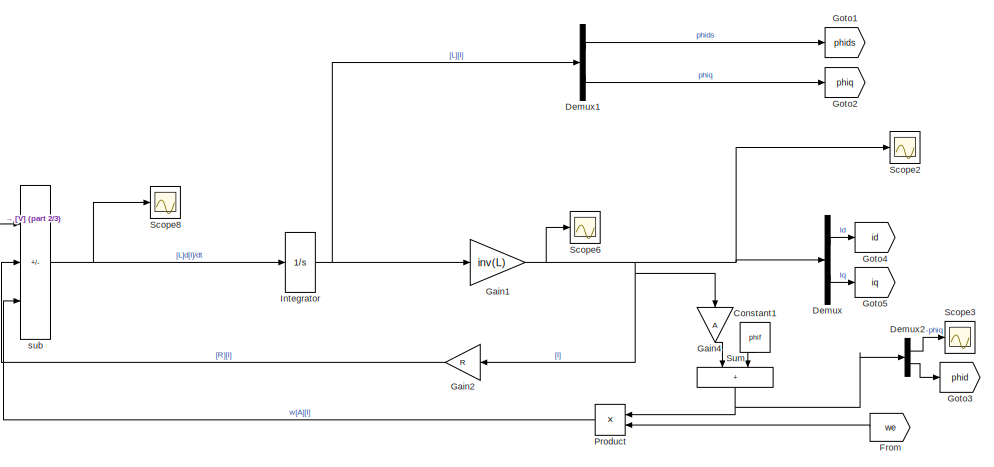
[diagram: root canvas - part 1/3, center side, full height]
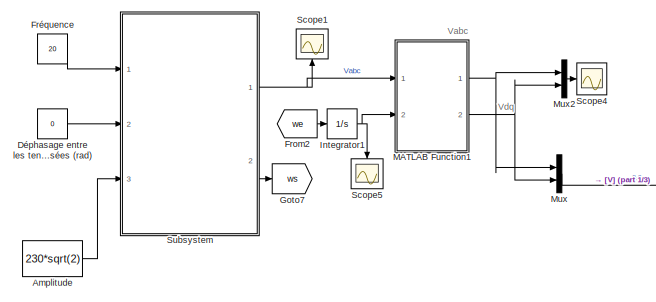
[diagram: root canvas - part 2/3, middle left region]
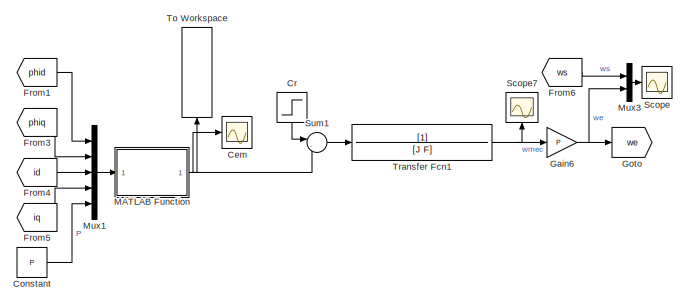
[diagram: root canvas - part 3/3, bottom right region]
MODEL slx_851d85b16422
KIND model
CONFIG AbsTol = auto
CONFIG EnableMultiTasking = off
CONFIG FixedStep = 1e-5
CONFIG MaxStep = auto
CONFIG MinStep = auto
CONFIG RelTol = 1e-3
CONFIG SampleTimeConstraint = Unconstrained
CONFIG SolverName = ode1
CONFIG StartTime = 0.0
CONFIG StopTime = 10.0
BLOCK [Constant] Amplitude
  Value = 230*sqrt(2)
BLOCK [Scope] Cem
  Floating = off
  NumInputPorts = 1
  Ports = [1]
  ScopeSpecificationString = Simulink.scopes.TimeScopeBlockCfg('CurrentConfiguration', extmgr.ConfigurationSet(extmgr.Configuration('Core','General UI',true),extmgr.Configuration('Core','Source UI',true),extmgr.Configuration('Sources','WiredSimulink',true,'DataLoggingVariableName','ScopeData1'),extmgr.Configuration('Visuals','Time Domain',true,'SerializedDisplays',{struct('MinYLimReal','-18.51073','MaxYLimReal','19.55736','YL...<+1441ch>
BLOCK [Constant] Constant
  Value = P
BLOCK [Constant] Constant1
  NameLocation = left
  Value = phif
BLOCK [Step] Cr
  After = 1+C0
  NameLocation = left
  SampleTime = 0
  Time = 4
BLOCK [Demux] Demux
  Outputs = 2
  Ports = [1, 2]
BLOCK [Demux] Demux1
  Outputs = 2
  Ports = [1, 2]
BLOCK [Demux] Demux2
  Outputs = 2
  Ports = [1, 2]
BLOCK [Constant] Déphasage entre les tensions triphasées (rad)
  Value = 0
BLOCK [From] From
  GotoTag = we
  NameLocation = top
BLOCK [From] From1
  GotoTag = phid
BLOCK [From] From2
  GotoTag = we
BLOCK [From] From3
  GotoTag = phiq
BLOCK [From] From4
  GotoTag = id
BLOCK [From] From5
  GotoTag = iq
BLOCK [From] From6
  GotoTag = ws
BLOCK [Constant] Fréquence
  NameLocation = top
  Value = 20
BLOCK [Gain] Gain1
  Gain = inv(L)
  Multiplication = Matrix(K*u)
BLOCK [Gain] Gain2
  Gain = R
  Multiplication = Matrix(K*u)
  NameLocation = top
BLOCK [Gain] Gain4
  Gain = A
  Multiplication = Matrix(K*u)
  NameLocation = left
BLOCK [Gain] Gain6
  Gain = P
BLOCK [Goto] Goto
  GotoTag = we
BLOCK [Goto] Goto1
  GotoTag = phids
BLOCK [Goto] Goto2
  GotoTag = phiq
BLOCK [Goto] Goto3
  GotoTag = phid
BLOCK [Goto] Goto4
  GotoTag = id
BLOCK [Goto] Goto5
  GotoTag = iq
BLOCK [Goto] Goto7
  GotoTag = ws
BLOCK [Integrator] Integrator
  Ports = [1, 1]
BLOCK [Integrator] Integrator1
  Ports = [1, 1]
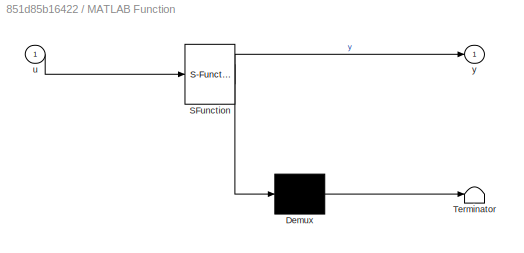
BLOCK [SubSystem] MATLAB Function
  ErrorFcn = Stateflow.Translate.translate
  PermitHierarchicalResolution = ExplicitOnly
  Ports = [1, 1]
  RequestExecContextInheritance = off
  SFBlockType = MATLAB Function
  TreatAsAtomicUnit = on
BLOCK [Demux] MATLAB Function/ Demux 
  Outputs = 1
  Ports = [1, 1]
BLOCK [S-Function] MATLAB Function/ SFunction 
  EnableBusSupport = on
  FunctionName = sf_sfun
  PortCounts = [1 2]
  Ports = [1, 2]
  SFcnIsStateOwnerBlock = off
  SFunctionDeploymentMode = off
  Tag = Stateflow S-Function 2
BLOCK [Terminator] MATLAB Function/ Terminator 
BLOCK [Inport] MATLAB Function/u
BLOCK [Outport] MATLAB Function/y
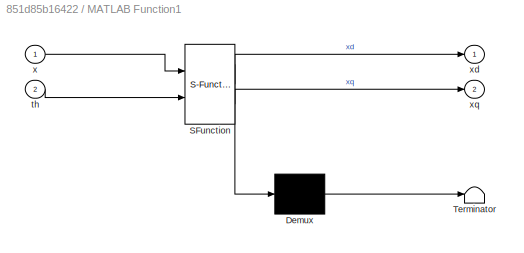
BLOCK [SubSystem] MATLAB Function1
  ErrorFcn = Stateflow.Translate.translate
  PermitHierarchicalResolution = ExplicitOnly
  Ports = [2, 2]
  RequestExecContextInheritance = off
  SFBlockType = MATLAB Function
  TreatAsAtomicUnit = on
BLOCK [Demux] MATLAB Function1/ Demux 
  Outputs = 1
  Ports = [1, 1]
BLOCK [S-Function] MATLAB Function1/ SFunction 
  EnableBusSupport = on
  FunctionName = sf_sfun
  PortCounts = [2 3]
  Ports = [2, 3]
  SFcnIsStateOwnerBlock = off
  SFunctionDeploymentMode = off
  Tag = Stateflow S-Function 1
BLOCK [Terminator] MATLAB Function1/ Terminator 
BLOCK [Inport] MATLAB Function1/th
  Port = 2
BLOCK [Inport] MATLAB Function1/x
BLOCK [Outport] MATLAB Function1/xd
BLOCK [Outport] MATLAB Function1/xq
  Port = 2
BLOCK [Mux] Mux
  DisplayOption = bar
  Inputs = 2
  Ports = [2, 1]
BLOCK [Mux] Mux1
  DisplayOption = bar
  Inputs = 5
  Ports = [5, 1]
BLOCK [Mux] Mux2
  DisplayOption = bar
  Inputs = 2
  Ports = [2, 1]
BLOCK [Mux] Mux3
  DisplayOption = bar
  Inputs = 2
  Ports = [2, 1]
BLOCK [Product] Product
  NameLocation = top
  Ports = [2, 1]
BLOCK [Scope] Scope
  Floating = off
  NumInputPorts = 1
  Ports = [1]
  ScopeSpecificationString = Simulink.scopes.TimeScopeBlockCfg('CurrentConfiguration', extmgr.ConfigurationSet(extmgr.Configuration('Core','General UI',true),extmgr.Configuration('Core','Source UI',true),extmgr.Configuration('Sources','WiredSimulink',true,'DataLoggingVariableName','ScopeData2'),extmgr.Configuration('Visuals','Time Domain',true,'SerializedDisplays',{struct('MinYLimReal','-55.02465','MaxYLimReal','189.02416','Y...<+1785ch>
BLOCK [Scope] Scope1
  Floating = off
  NameLocation = right
  NumInputPorts = 1
  Ports = [1]
  ScopeSpecificationString = Simulink.scopes.TimeScopeBlockCfg('CurrentConfiguration', extmgr.ConfigurationSet(extmgr.Configuration('Core','General UI',true),extmgr.Configuration('Core','Source UI',true),extmgr.Configuration('Sources','WiredSimulink',true,'DataLoggingVariableName','ScopeData4'),extmgr.Configuration('Visuals','Time Domain',true,'SerializedDisplays',{struct('MinYLimReal','-323.07179','MaxYLimReal','328.47332','...<+1897ch>
BLOCK [Scope] Scope2
  Floating = off
  NumInputPorts = 1
  Ports = [1]
  ScopeSpecificationString = Simulink.scopes.TimeScopeBlockCfg('CurrentConfiguration', extmgr.ConfigurationSet(extmgr.Configuration('Core','General UI',true),extmgr.Configuration('Core','Source UI',true),extmgr.Configuration('Sources','WiredSimulink',true,'DataLoggingVariableName','ScopeData3'),extmgr.Configuration('Visuals','Time Domain',true,'SerializedDisplays',{struct('MinYLimReal','-10822310628876025319186366905135936717...<+3616ch>
BLOCK [Scope] Scope3
  Floating = off
  NumInputPorts = 1
  Ports = [1]
  ScopeSpecificationString = Simulink.scopes.TimeScopeBlockCfg('CurrentConfiguration', extmgr.ConfigurationSet(extmgr.Configuration('Core','General UI',true),extmgr.Configuration('Core','Source UI',true),extmgr.Configuration('Sources','WiredSimulink',true,'DataLoggingVariableName','ScopeData4'),extmgr.Configuration('Visuals','Time Domain',true,'SerializedDisplays',{struct('MinYLimReal','-14135967569842635501540308628409329373...<+3222ch>
BLOCK [Scope] Scope4
  Floating = off
  NumInputPorts = 1
  Ports = [1]
  ScopeSpecificationString = Simulink.scopes.TimeScopeBlockCfg('CurrentConfiguration', extmgr.ConfigurationSet(extmgr.Configuration('Core','General UI',true),extmgr.Configuration('Core','Source UI',true),extmgr.Configuration('Sources','WiredSimulink',true,'DataLoggingVariableName','ScopeData7'),extmgr.Configuration('Visuals','Time Domain',true,'SerializedDisplays',{struct('MinYLimReal','-70.67315','MaxYLimReal','319.17333','Y...<+1793ch>
BLOCK [Scope] Scope5
  Floating = off
  NameLocation = left
  NumInputPorts = 1
  Ports = [1]
  ScopeSpecificationString = Simulink.scopes.TimeScopeBlockCfg('CurrentConfiguration', extmgr.ConfigurationSet(extmgr.Configuration('Core','General UI',true),extmgr.Configuration('Core','Source UI',true),extmgr.Configuration('Sources','WiredSimulink',true,'DataLoggingVariableName','ScopeData8'),extmgr.Configuration('Visuals','Time Domain',true,'SerializedDisplays',{struct('MinYLimReal','-62.69998','MaxYLimReal','8.81608','YLa...<+1422ch>
BLOCK [Scope] Scope6
  Floating = off
  NumInputPorts = 1
  Ports = [1]
  ScopeSpecificationString = Simulink.scopes.TimeScopeBlockCfg('CurrentConfiguration', extmgr.ConfigurationSet(extmgr.Configuration('Core','General UI',true),extmgr.Configuration('Core','Source UI',true),extmgr.Configuration('Sources','WiredSimulink',true,'DataLoggingVariableName','ScopeData5'),extmgr.Configuration('Visuals','Time Domain',true,'SerializedDisplays',{struct('MinYLimReal','-14853462824097370008528948101033756243...<+3615ch>
BLOCK [Scope] Scope7
  Floating = off
  NameLocation = right
  NumInputPorts = 1
  Ports = [1]
  ScopeSpecificationString = Simulink.scopes.TimeScopeBlockCfg('CurrentConfiguration', extmgr.ConfigurationSet(extmgr.Configuration('Core','General UI',true),extmgr.Configuration('Core','Source UI',true),extmgr.Configuration('Sources','WiredSimulink',true,'DataLoggingVariableName','ScopeData6'),extmgr.Configuration('Visuals','Time Domain',true,'SerializedDisplays',{struct('MinYLimReal','-11.41956','MaxYLimReal','102.77603','Y...<+1402ch>
BLOCK [Scope] Scope8
  Floating = off
  NumInputPorts = 1
  Ports = [1]
  ScopeSpecificationString = Simulink.scopes.TimeScopeBlockCfg('CurrentConfiguration', extmgr.ConfigurationSet(extmgr.Configuration('Core','General UI',true),extmgr.Configuration('Core','Source UI',true),extmgr.Configuration('Sources','WiredSimulink',true,'DataLoggingVariableName','ScopeData7'),extmgr.Configuration('Visuals','Time Domain',true,'SerializedDisplays',{struct('MinYLimReal','-175.40864','MaxYLimReal','365.1865','Y...<+1469ch>
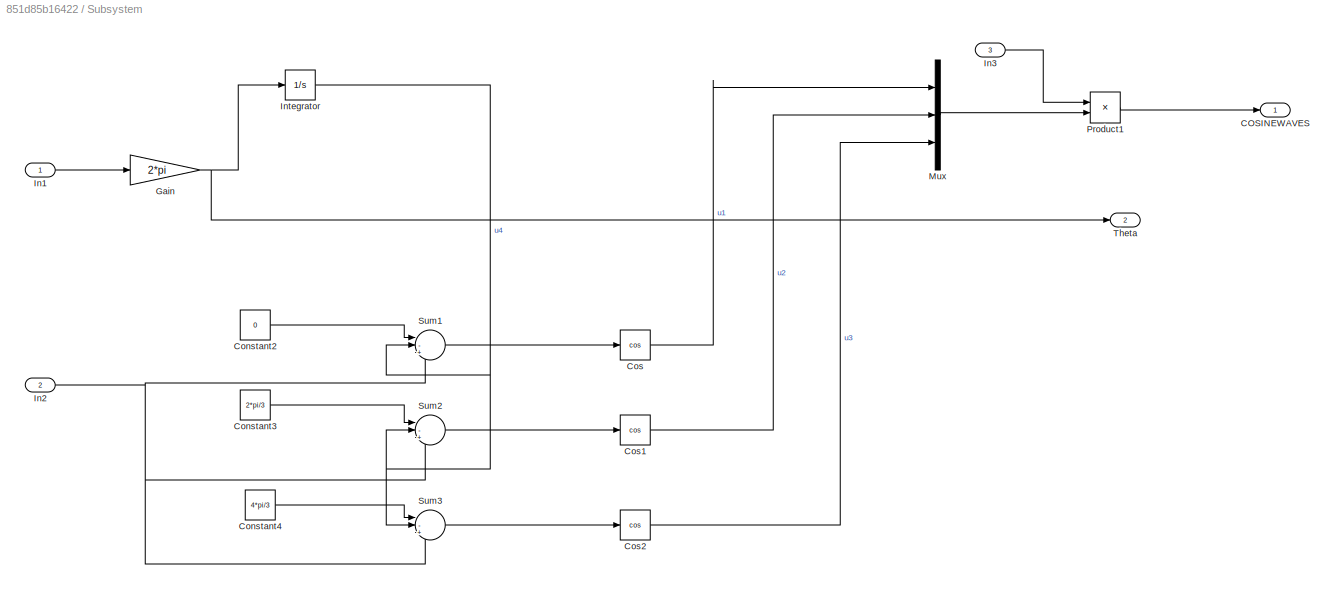
BLOCK [SubSystem] Subsystem
  Ports = [3, 2]
  RequestExecContextInheritance = off
BLOCK [Outport] Subsystem/COSINEWAVES
BLOCK [Constant] Subsystem/Constant2
  Value = 0
BLOCK [Constant] Subsystem/Constant3
  Value = 2*pi/3
BLOCK [Constant] Subsystem/Constant4
  Value = 4*pi/3
BLOCK [Trigonometry] Subsystem/Cos
  Operator = cos
  Ports = [1, 1]
BLOCK [Trigonometry] Subsystem/Cos1
  Operator = cos
  Ports = [1, 1]
BLOCK [Trigonometry] Subsystem/Cos2
  Operator = cos
  Ports = [1, 1]
BLOCK [Gain] Subsystem/Gain
  Gain = 2*pi
BLOCK [Inport] Subsystem/In1
BLOCK [Inport] Subsystem/In2
  Port = 2
BLOCK [Inport] Subsystem/In3
  Port = 3
BLOCK [Integrator] Subsystem/Integrator
  Ports = [1, 1]
BLOCK [Mux] Subsystem/Mux
  DisplayOption = bar
  Inputs = 3
  Ports = [3, 1]
BLOCK [Product] Subsystem/Product1
  Ports = [2, 1]
BLOCK [Sum] Subsystem/Sum1
  Inputs = |-+|+
  NameLocation = top
  Ports = [3, 1]
BLOCK [Sum] Subsystem/Sum2
  Inputs = |-+|+
  NameLocation = top
  Ports = [3, 1]
BLOCK [Sum] Subsystem/Sum3
  Inputs = |-+|+
  NameLocation = top
  Ports = [3, 1]
BLOCK [Outport] Subsystem/Theta
  Port = 2
BLOCK [Sum] Sum
  IconShape = rectangular
  NameLocation = left
  Ports = [2, 1]
BLOCK [Sum] Sum1
  Inputs = |-+
  Ports = [2, 1]
BLOCK [ToWorkspace] To Workspace
  FixptAsFi = on
  MaxDataPoints = inf
  NameLocation = right
  Ports = [1]
  SampleTime = -1
  SaveFormat = Timeseries
  VariableName = Torque
BLOCK [TransferFcn] Transfer Fcn1
  Denominator = [J F]
BLOCK [Sum] sub
  IconShape = rectangular
  Inputs = +--
  Ports = [3, 1]
ANNOTATION (root): Vabc
ANNOTATION (root): Vdq
LINE Amplitude:1 -> Subsystem:3
LINE Constant1:1 -> Sum:2
LINE Constant:1 -> Mux1:5
LINE Cr:1 -> Sum1:1
LINE Demux1:1 -> Goto1:1
LINE Demux1:2 -> Goto2:1
LINE Demux2:1 -> Scope3:1
LINE Demux2:2 -> Goto3:1
LINE Demux:1 -> Goto4:1
LINE Demux:2 -> Goto5:1
LINE Déphasage entre les tensions triphasées (rad):1 -> Subsystem:2
LINE From1:1 -> Mux1:1
LINE From2:1 -> Integrator1:1
LINE From3:1 -> Mux1:2
LINE From4:1 -> Mux1:3
LINE From5:1 -> Mux1:4
LINE From6:1 -> Mux3:1
LINE From:1 -> Product:2
LINE Fréquence:1 -> Subsystem:1
NET Gain1:1 -> Demux:1, Gain2:1, Gain4:1, Scope2:1, Scope6:1
LINE Gain2:1 -> sub:2
LINE Gain4:1 -> Sum:1
NET Gain6:1 -> Goto:1, Mux3:2
NET Integrator1:1 -> MATLAB Function1:2, Scope5:1
NET Integrator:1 -> Demux1:1, Gain1:1
NET MATLAB Function1:1 -> Mux2:1, Mux:1
NET MATLAB Function1:2 -> Mux2:2, Mux:2
NET MATLAB Function:1 -> Cem:1, Sum1:2, To Workspace:1
LINE Mux1:1 -> MATLAB Function:1
LINE Mux2:1 -> Scope4:1
LINE Mux3:1 -> Scope:1
LINE Mux:1 -> sub:1
LINE Product:1 -> sub:3
LINE Subsystem/Constant2:1 -> Subsystem/Sum1:1
LINE Subsystem/Constant3:1 -> Subsystem/Sum2:1
LINE Subsystem/Constant4:1 -> Subsystem/Sum3:1
LINE Subsystem/Cos1:1 -> Subsystem/Mux:2
LINE Subsystem/Cos2:1 -> Subsystem/Mux:3
LINE Subsystem/Cos:1 -> Subsystem/Mux:1
NET Subsystem/Gain:1 -> Subsystem/Integrator:1, Subsystem/Theta:1
LINE Subsystem/In1:1 -> Subsystem/Gain:1
NET Subsystem/In2:1 -> Subsystem/Sum1:3, Subsystem/Sum2:3, Subsystem/Sum3:3
LINE Subsystem/In3:1 -> Subsystem/Product1:1
NET Subsystem/Integrator:1 -> Subsystem/Sum1:2, Subsystem/Sum2:2, Subsystem/Sum3:2
LINE Subsystem/Mux:1 -> Subsystem/Product1:2
LINE Subsystem/Product1:1 -> Subsystem/COSINEWAVES:1
LINE Subsystem/Sum1:1 -> Subsystem/Cos:1
LINE Subsystem/Sum2:1 -> Subsystem/Cos1:1
LINE Subsystem/Sum3:1 -> Subsystem/Cos2:1
NET Subsystem:1 -> MATLAB Function1:1, Scope1:1
LINE Subsystem:2 -> Goto7:1
LINE Sum1:1 -> Transfer Fcn1:1
NET Sum:1 -> Demux2:1, Product:1
NET Transfer Fcn1:1 -> Gain6:1, Scope7:1
NET sub:1 -> Integrator:1, Scope8:1
note: NET lines group one-source signal fan-out (src -> all destinations, sorted); 1:1 wires keep LINE
CHART MATLAB Function1 states=1 transitions=1
  STATE_LABEL 'eML_blk_kernel()'
  STATE_LABEL 'SCRIPT:\nfunction [xd,xq] = Park(x,th)\n% vd=(2/3)*(u1*cos(th)+u2*cos(th-2*pi/3)+u3*cos(th+2*pi/3));\n% vq=(2/3)*(-u1*sin(th)-u2*sin(th-2*pi/3)-u3*sin(th+2*pi/3));\nP=(2/3)*[ cos(th) cos(th-2*pi/3) cos(th+2*pi/3);\n         -sin(th) -sin(th-2*pi/3) -sin(th+2*pi/3)  ];\nprod=P*x;\nxd=prod(1);\nxq=prod(2);'
CHART MATLAB Function states=1 transitions=1
  STATE_LABEL 'eML_blk_kernel()'
  STATE_LABEL 'SCRIPT:\nfunction y = CEM(u)\n\ny =(3/2)*u(5)*(u(1)*u(4)-u(2)*u(3));\n'
CHART  states=0 transitions=0
CHART  states=0 transitions=0
